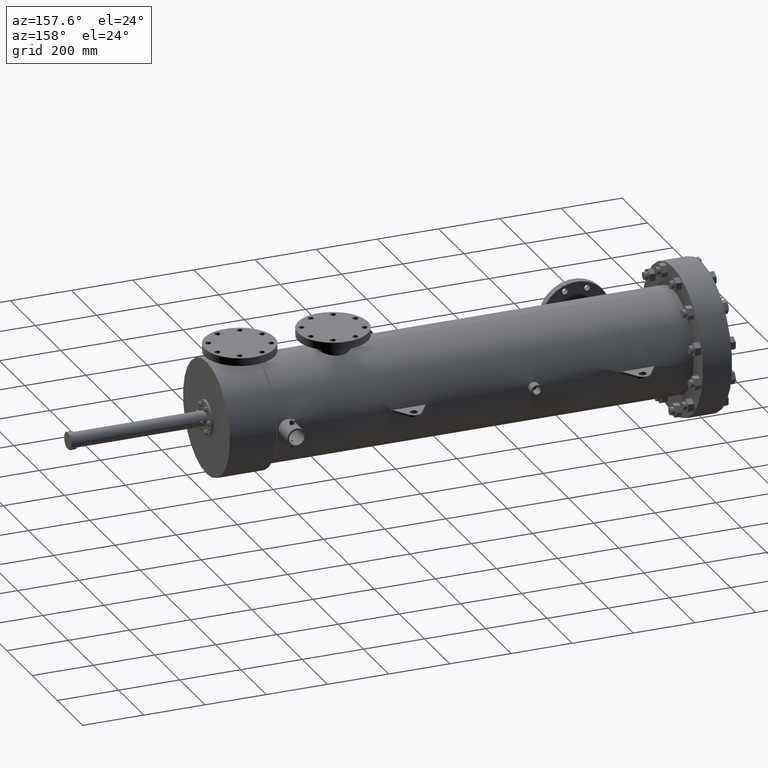
[diagram: clean part render]
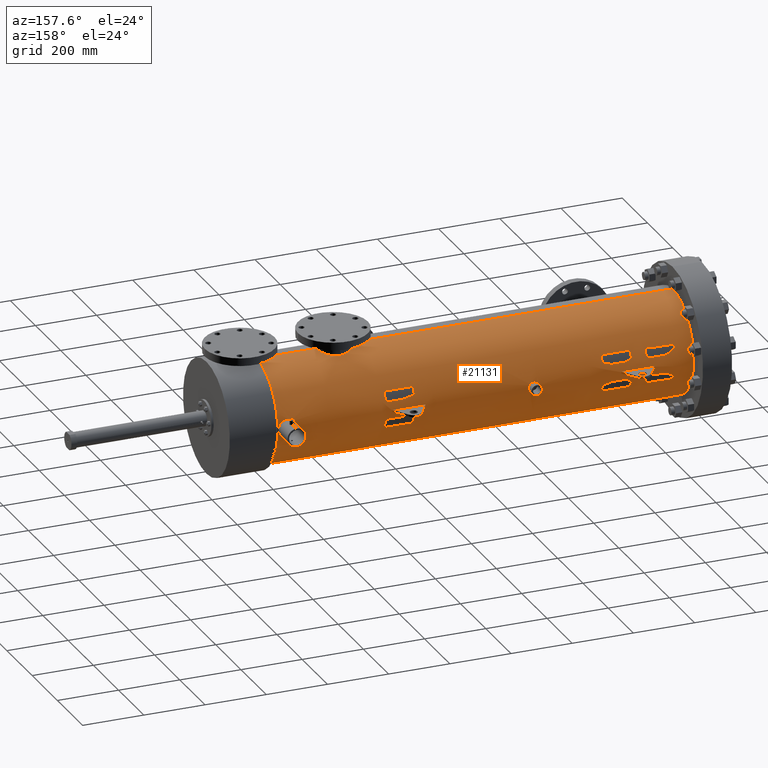
[diagram: same view with one face highlighted and labeled with its STEP entity id]
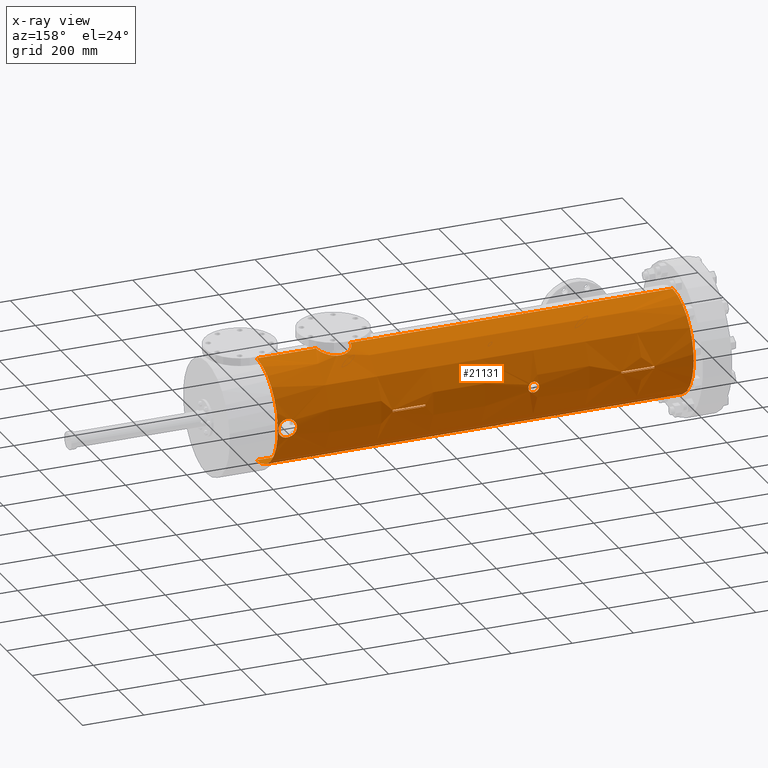
[diagram: x-ray of the same camera — body ghosted, the highlighted face saturated]
A machine part, auxiliary view. The second image highlights one B-rep face of the part: STEP entity #21131.
The next image is the same camera in x-ray: the body ghosted, the highlighted face saturated — about 0% of this face is hidden behind the body in this view.
In plain terms, the highlighted conical surface has half-angle 0.002 deg.
Its self-contained STEP definition (entity closure, byte-faithful):
#32 = CARTESIAN_POINT ( 'NONE',  ( 24.61937592603440095, 6.595216655171038056, 0.6351230890558299258 ) ) ;
#61 = CARTESIAN_POINT ( 'NONE',  ( 55.27200770505329785, 6.558636937178410342, -0.9496377372227016167 ) ) ;
#65 = CARTESIAN_POINT ( 'NONE',  ( 56.60126499763207164, 6.545278759257087131, 1.038696254054454426 ) ) ;
#90 = CARTESIAN_POINT ( 'NONE',  ( 38.73571325463463211, 6.625123272544874986, -0.1250000000000000000 ) ) ;
#99 = CARTESIAN_POINT ( 'NONE',  ( 13.05833878243975299, 6.624066785163618576, 0.1250000000000000000 ) ) ;
#134 = CARTESIAN_POINT ( 'NONE',  ( 54.82050265584400250, 6.624120654174062928, -0.1950900208604222918 ) ) ;
#141 = CARTESIAN_POINT ( 'NONE',  ( 57.01811314554152688, 6.596849437547260386, -0.6328406133667042743 ) ) ;
#177 = CARTESIAN_POINT ( 'NONE',  ( 24.95783008198224806, 6.618644529516417130, 0.3093840079118945763 ) ) ;
#207 = CARTESIAN_POINT ( 'NONE',  ( 54.81232927144455402, 6.625565531657748863, 0.1566859607207307936 ) ) ;
#252 = VERTEX_POINT ( 'NONE', #14868 ) ;
#261 = CARTESIAN_POINT ( 'NONE',  ( 24.99196205247920943, 6.621981699887417250, 0.2241093851198744658 ) ) ;
#496 = CARTESIAN_POINT ( 'NONE',  ( 47.06962784540759515, 2.167228140952087934, 6.262234545450816370 ) ) ;
#570 = CARTESIAN_POINT ( 'NONE',  ( 46.42282088529157846, 1.952181299470898468, 6.332564822849808372 ) ) ;
#642 = CARTESIAN_POINT ( 'NONE',  ( 45.43084339920436321, 0.9092969580647992656, 6.563976836401258730 ) ) ;
#1062 = CARTESIAN_POINT ( 'NONE',  ( 13.05730184998885512, 6.625639197745133657, -0.04167161148260743742 ) ) ;
#1073 = CARTESIAN_POINT ( 'NONE',  ( 23.63488859746746229, 6.625681182923099044, -8.948446784126143041E-28 ) ) ;
#1217 = CARTESIAN_POINT ( 'NONE',  ( 38.41548225481930956, 6.625110096742915289, 0.1250000000000000000 ) ) ;
#1222 = VERTEX_POINT ( 'NONE', #17909 ) ;
#1234 = CARTESIAN_POINT ( 'NONE',  ( 48.40484027190433380, 1.970509890089721328, 6.327044617253957171 ) ) ;
#1247 = CARTESIAN_POINT ( 'NONE',  ( 24.04425288201377953, 6.595185581474420466, -0.6352000489090204871 ) ) ;
#1293 = CARTESIAN_POINT ( 'NONE',  ( 41.25026424325641017, 6.625226732939976770, 0.1250000000000000000 ) ) ;
#1329 = DIRECTION ( 'NONE',  ( -1.000000000000000000, -0.0000000000000000000, -0.0000000000000000000 ) ) ;
#1376 = CARTESIAN_POINT ( 'NONE',  ( 47.71866202469607288, 2.182770335857948663, 6.256932001542447885 ) ) ;
#1456 = CARTESIAN_POINT ( 'NONE',  ( 25.02858938482451734, 6.625738516091783659, 9.224139734670480511E-17 ) ) ;
#1487 = EDGE_CURVE ( 'NONE', #20854, #9613, #10393, .T. ) ;
#1494 =( BOUNDED_CURVE ( )  B_SPLINE_CURVE ( 3, ( #5945, #19851, #2477, #16269 ),
 .UNSPECIFIED., .F., .F. ) 
 B_SPLINE_CURVE_WITH_KNOTS ( ( 4, 4 ),
 ( 3.122728272044997588, 3.160457035134589088 ),
 .UNSPECIFIED. ) 
 CURVE ( )  GEOMETRIC_REPRESENTATION_ITEM ( )  RATIONAL_B_SPLINE_CURVE ( ( 1.000000000000000000, 0.9998813818873752979, 0.9998813818873752979, 1.000000000000000000 ) ) 
 REPRESENTATION_ITEM ( '' )  );
#1538 = CARTESIAN_POINT ( 'NONE',  ( 57.26579621931563224, 3.496765431890256920E-14, 0.0000000000000000000 ) ) ;
#1565 = CARTESIAN_POINT ( 'NONE',  ( 56.15797472438789129, 6.519806763371938985, -1.187230913813825062 ) ) ;
#1608 = CARTESIAN_POINT ( 'NONE',  ( 23.82298312454182465, 6.608534208931899911, -0.4767526722465968425 ) ) ;
#1637 = CARTESIAN_POINT ( 'NONE',  ( 56.73191937657709616, 6.558550149069921176, -0.9513361893102689759 ) ) ;
#1682 = CARTESIAN_POINT ( 'NONE',  ( 23.67154622345036330, 6.621924292519905109, -0.2242122927195955850 ) ) ;
#1696 = CARTESIAN_POINT ( 'NONE',  ( 11.80079695645657623, 6.624015044004892161, -0.1250000000000000000 ) ) ;
#1707 = CARTESIAN_POINT ( 'NONE',  ( 54.81228888708609048, 6.625590013865219063, -0.1363452438704339242 ) ) ;
#1713 = CARTESIAN_POINT ( 'NONE',  ( 56.08047215407318475, 6.518043340364821248, 1.196850393700786830 ) ) ;
#1741 = ORIENTED_EDGE ( 'NONE', *, *, #8170, .F. ) ;
#1756 = CARTESIAN_POINT ( 'NONE',  ( 24.02352328763122813, 6.596123767986869169, 0.6254061756079920542 ) ) ;
#1757 = EDGE_CURVE ( 'NONE', #5052, #12317, #15907, .T. ) ;
#1760 = CARTESIAN_POINT ( 'NONE',  ( 23.63488859746747650, 6.625681182923103485, -0.04562328807414386955 ) ) ;
#1794 = CARTESIAN_POINT ( 'NONE',  ( 56.95104840903515964, 6.586834115037909498, 0.7296245011184009366 ) ) ;
#1842 = CARTESIAN_POINT ( 'NONE',  ( 24.44529064131588569, 6.589907312063103539, 0.6879207084075606993 ) ) ;
#1871 = CARTESIAN_POINT ( 'NONE',  ( 55.50730347532889652, 6.536629491605053133, -1.090748190403775020 ) ) ;
#1878 = CARTESIAN_POINT ( 'NONE',  ( 56.82032511695359744, 6.569246863854623086, 0.8737899169955739564 ) ) ;
#1906 = CARTESIAN_POINT ( 'NONE',  ( 8.804567666652552305, 6.623891765102280615, 0.1250000000000000000 ) ) ;
#1911 = LINE ( 'NONE', #2619, #13823 ) ;
#1922 = CARTESIAN_POINT ( 'NONE',  ( 24.10725494163689575, 6.592642637356330049, 0.6612695170001846590 ) ) ;
#1951 = CARTESIAN_POINT ( 'NONE',  ( 54.92775216551337536, 6.605822004679044568, 0.5301250749407172558 ) ) ;
#2071 = ORIENTED_EDGE ( 'NONE', *, *, #1487, .F. ) ;
#2100 = CARTESIAN_POINT ( 'NONE',  ( 55.96193490122126946, 6.518128765981451522, 1.196358473467759032 ) ) ;
#2245 = CARTESIAN_POINT ( 'NONE',  ( 45.56626224319098384, 1.163611780546666141, 6.523898366256731585 ) ) ;
#2303 = B_SPLINE_CURVE_WITH_KNOTS ( 'NONE', 3,
 ( #13797, #20729, #13558, #10388, #18688, #11838, #12425, #7277, #19157, #13950, #19381, #5243, #5394, #19311, #8868, #17620, #10548, #3730, #7126, #1756, #5463, #1922, #17538, #3577, #8941, #5317, #12206, #7198, #5535, #9016, #1842, #15666, #13881, #32, #14023, #17388, #7053, #20957, #8789, #20890, #3652, #10624, #21036, #3506, #177, #12278, #261, #15740, #10697, #6978, #12345, #17458, #19236, #21116 ),
 .UNSPECIFIED., .F., .F.,
 ( 4, 2, 2, 2, 2, 2, 2, 2, 2, 2, 2, 2, 2, 2, 2, 2, 2, 2, 2, 2, 2, 2, 2, 2, 2, 2, 4 ),
 ( 0.01059061988978174731, 0.01232102977938333808, 0.01405143966898492885, 0.01751225944818817631, 0.01924266933778986249, 0.02097307922739155214, 0.02270348911699324179, 0.02443389900659492797, 0.02789471878579830380, 0.02962512867540012876, 0.03135553856500195025, 0.03481635834420591935, 0.03654676823380789696, 0.03827717812340988152, 0.04000758801301185913, 0.04173799790261383674, 0.04519881768181811810, 0.04692922757142041490, 0.04865963746102271170, 0.05212045724022758286, 0.05385086712983000456, 0.05558127701943244015, 0.05904209679863713089, 0.06077250668823939994, 0.06250291657784168287, 0.06423332646744396579, 0.06596373635704623484 ),
 .UNSPECIFIED. ) ;
#2322 = CARTESIAN_POINT ( 'NONE',  ( 46.32807682323560527, 1.901276761178815722, 6.348104310223348534 ) ) ;
#2380 = CARTESIAN_POINT ( 'NONE',  ( 42.50753973756729920, 6.625278463137210139, -0.1250000000000000000 ) ) ;
#2394 = CARTESIAN_POINT ( 'NONE',  ( 45.98140626536168440, 1.651097372132948271, 6.417657855179334625 ) ) ;
#2469 = CARTESIAN_POINT ( 'NONE',  ( 45.68537481896176189, 1.341377978199852272, 6.490525186168809135 ) ) ;
#2477 = CARTESIAN_POINT ( 'NONE',  ( 42.50650299473547022, 6.626850588178862189, 0.04167160967435654118 ) ) ;
#2545 = VECTOR ( 'NONE', #6820, 39.37007874015748854 ) ;
#2599 = B_SPLINE_CURVE_WITH_KNOTS ( 'NONE', 3,
 ( #21210, #12889, #19554, #10878, #21287, #496, #19624, #5856, #10948, #14560, #4042, #12668, #570, #2322, #14635, #12586, #9271, #5642, #2394, #17938, #14337, #21360, #2469, #2245, #3964, #11027, #16040, #642, #14477, #9344, #4192, #16262, #5934, #18009, #7650, #21507, #11250, #21579 ),
 .UNSPECIFIED., .F., .F.,
 ( 4, 2, 2, 2, 2, 2, 2, 2, 2, 2, 2, 2, 2, 2, 2, 2, 2, 2, 4 ),
 ( 0.2164817129622222669, 0.2219716033028540925, 0.2247165484731700191, 0.2274614936434859458, 0.2384412743247515676, 0.2411862194950678273, 0.2439311646653840870, 0.2494210550060160236, 0.2549109453466479325, 0.2576558905169641922, 0.2604008356872803964, 0.2713806163685458239, 0.2768705067091787320, 0.2796154518794953248, 0.2823603970498119731, 0.2933401777310783998, 0.2960851229013949371, 0.2988300680717114743, 0.3043199584123445489 ),
 .UNSPECIFIED. ) ;
#2619 = CARTESIAN_POINT ( 'NONE',  ( 3.750000000603466610, 3.577896606663461051E-14, 6.624863171135633166 ) ) ;
#2680 = CARTESIAN_POINT ( 'NONE',  ( 49.55326896037257001, 0.5721443596339923499, 6.602367384576369069 ) ) ;
#2757 = CARTESIAN_POINT ( 'NONE',  ( 49.62331052514779373, 0.1457795337870360641, 6.625246418453715869 ) ) ;
#2820 = ORIENTED_EDGE ( 'NONE', *, *, #1757, .T. ) ;
#2890 = AXIS2_PLACEMENT_3D ( 'NONE', #9726, #11107, #4647 ) ;
#2901 = CARTESIAN_POINT ( 'NONE',  ( 49.62060093415822593, 0.1819556995356231277, 6.624349544821767743 ) ) ;
#3037 = CARTESIAN_POINT ( 'NONE',  ( 55.92344924069163881, 6.518387742782161709, -1.194943773116535102 ) ) ;
#3048 = CARTESIAN_POINT ( 'NONE',  ( 49.23575818607319121, 1.253107856756583205, 6.507245399283522858 ) ) ;
#3150 = ORIENTED_EDGE ( 'NONE', *, *, #7154, .F. ) ;
#3194 = CARTESIAN_POINT ( 'NONE',  ( 48.59232739049662086, 1.865144206317850273, 6.358841610129657873 ) ) ;
#3204 = CARTESIAN_POINT ( 'NONE',  ( 24.51269945545988449, 6.591418354534501312, -0.6733340025067852119 ) ) ;
#3280 = CARTESIAN_POINT ( 'NONE',  ( 24.24084785732150849, 6.589546321928668071, -0.6912783887236043645 ) ) ;
#3308 = CARTESIAN_POINT ( 'NONE',  ( 56.04057664901846891, 6.518041671730610886, -1.196850393700786830 ) ) ;
#3360 = VERTEX_POINT ( 'NONE', #8132 ) ;
#3372 = CARTESIAN_POINT ( 'NONE',  ( 55.84441731007866849, 6.519809599965372904, 1.187143371141885950 ) ) ;
#3382 = CARTESIAN_POINT ( 'NONE',  ( 56.53146307844686191, 6.539478711684291845, -1.073852852331953711 ) ) ;
#3411 = CARTESIAN_POINT ( 'NONE',  ( 3.750000000603466610, 3.496765431890256920E-14, -6.624863171135633166 ) ) ;
#3432 = CARTESIAN_POINT ( 'NONE',  ( 24.02346076836300526, 6.596127308524198263, -0.6253668087883182958 ) ) ;
#3459 = CARTESIAN_POINT ( 'NONE',  ( 55.16895718709756125, 6.570947460457707834, 0.8600499393138349991 ) ) ;
#3465 = CARTESIAN_POINT ( 'NONE',  ( 57.18869653688910404, 6.625321751992521158, -0.1568534599495512993 ) ) ;
#3504 = DIRECTION ( 'NONE',  ( 0.0000000000000000000, 0.0000000000000000000, -1.000000000000000000 ) ) ;
#3506 = CARTESIAN_POINT ( 'NONE',  ( 24.93635912126556065, 6.616622564362423908, 0.3494229907869685903 ) ) ;
#3536 = CARTESIAN_POINT ( 'NONE',  ( 56.86148112990209569, 6.574547457708962206, -0.8326385156845793611 ) ) ;
#3563 = CARTESIAN_POINT ( 'NONE',  ( 8.804567666652552305, 6.623891765102280615, -0.1250000000000000000 ) ) ;
#3577 = CARTESIAN_POINT ( 'NONE',  ( 24.21800542683008217, 6.589901417761278246, 0.6878869913921086265 ) ) ;
#3606 = CARTESIAN_POINT ( 'NONE',  ( 55.30420587333680515, 6.555124791273326146, 0.9735168409037276982 ) ) ;
#3608 = ORIENTED_EDGE ( 'NONE', *, *, #15126, .F. ) ;
#3611 = CARTESIAN_POINT ( 'NONE',  ( 57.19789781860717426, 6.626978114822371424, -0.03870098603353362005 ) ) ;
#3631 = CARTESIAN_POINT ( 'NONE',  ( 38.41548225481930956, 6.625110096742915289, -0.1250000000000000000 ) ) ;
#3652 = CARTESIAN_POINT ( 'NONE',  ( 24.85589912248967792, 6.609784442356694711, 0.4597622495242772445 ) ) ;
#3673 = CARTESIAN_POINT ( 'NONE',  ( 54.88114633577802692, 6.613564451167517788, 0.4227933831450450541 ) ) ;
#3692 = ORIENTED_EDGE ( 'NONE', *, *, #20898, .F. ) ;
#3730 = CARTESIAN_POINT ( 'NONE',  ( 23.96335986567279619, 6.599210324008490502, 0.5919579126977894123 ) ) ;
#3949 = CARTESIAN_POINT ( 'NONE',  ( 38.25536675491165539, 6.625103508841950095, 0.1250000000000000000 ) ) ;
#3964 = CARTESIAN_POINT ( 'NONE',  ( 45.52927309852552185, 1.102185498450706902, 6.534595241988764514 ) ) ;
#3995 = FACE_BOUND ( 'NONE', #8965, .T. ) ;
#4031 = B_SPLINE_CURVE_WITH_KNOTS ( 'NONE', 3,
 ( #20644, #10455, #15573, #10304, #12270, #17311, #99 ),
 .UNSPECIFIED., .F., .F.,
 ( 4, 3, 4 ),
 ( 0.1885951599580259208, 0.2008162591694472587, 0.2966409463904753352 ),
 .UNSPECIFIED. ) ;
#4042 = CARTESIAN_POINT ( 'NONE',  ( 46.52012989077491056, 1.999442725861818815, 6.317801857963616818 ) ) ;
#4164 = ORIENTED_EDGE ( 'NONE', *, *, #13986, .F. ) ;
#4192 = CARTESIAN_POINT ( 'NONE',  ( 45.30551253636033238, 0.5739196774382412380, 6.603202763877969339 ) ) ;
#4197 = EDGE_LOOP ( 'NONE', ( #21092, #19231 ) ) ;
#4266 = CARTESIAN_POINT ( 'NONE',  ( 56.00151093333343510, 6.518040037802436792, 1.196850393700786830 ) ) ;
#4536 = CONICAL_SURFACE ( 'NONE', #9287, 6.624863171135633166, 4.113735830023026774E-05 ) ;
#4637 = CARTESIAN_POINT ( 'NONE',  ( 49.59914722851742397, 0.3612017787890298703, 6.617275728583726924 ) ) ;
#4647 = DIRECTION ( 'NONE',  ( 0.0000000000000000000, 0.0000000000000000000, 1.000000000000000000 ) ) ;
#4725 = CARTESIAN_POINT ( 'NONE',  ( 25.02858938482451734, 6.625738516091782770, -0.04580066019597584664 ) ) ;
#4728 = CIRCLE ( 'NONE', #8205, 6.627064669620645887 ) ;
#4729 = CARTESIAN_POINT ( 'NONE',  ( 38.25640358139656172, 6.626675760702358531, 0.04167161047184272243 ) ) ;
#4772 = CARTESIAN_POINT ( 'NONE',  ( 55.96246017081339374, 6.518038404499684191, -1.196850393700787052 ) ) ;
#4785 = CARTESIAN_POINT ( 'NONE',  ( 49.03338738523458318, 1.504516082027179014, 6.453882776598839577 ) ) ;
#4833 =( BOUNDED_CURVE ( )  B_SPLINE_CURVE ( 3, ( #18348, #1062, #20114, #20255 ),
 .UNSPECIFIED., .F., .T. ) 
 B_SPLINE_CURVE_WITH_KNOTS ( ( 4, 4 ),
 ( 3.122724822180704241, 3.160460484998882436 ),
 .UNSPECIFIED. ) 
 CURVE ( )  GEOMETRIC_REPRESENTATION_ITEM ( )  RATIONAL_B_SPLINE_CURVE ( ( 1.000000000000000000, 0.9998813384996110276, 0.9998813384996110276, 1.000000000000000000 ) ) 
 REPRESENTATION_ITEM ( '' )  );
#4945 = CARTESIAN_POINT ( 'NONE',  ( 24.42316272370678121, 6.589448843797510946, -0.6923331540858830291 ) ) ;
#4955 = EDGE_CURVE ( 'NONE', #16462, #14658, #10701, .T. ) ;
#5021 = CARTESIAN_POINT ( 'NONE',  ( 25.02411743669181021, 6.625263635886830649, -0.09101396663154291689 ) ) ;
#5052 = VERTEX_POINT ( 'NONE', #3949 ) ;
#5065 = CARTESIAN_POINT ( 'NONE',  ( 3.750000000603466610, 3.577896606663461051E-14, 6.624863171135633166 ) ) ;
#5123 = CARTESIAN_POINT ( 'NONE',  ( 55.22712905745348877, 6.563829871673042327, 0.9127819825249572361 ) ) ;
#5176 = VERTEX_POINT ( 'NONE', #2380 ) ;
#5199 = CARTESIAN_POINT ( 'NONE',  ( 54.90306078364599784, 6.609900556514650916, -0.4756479162580777298 ) ) ;
#5203 = CARTESIAN_POINT ( 'NONE',  ( 57.15996716586990090, 6.620216910994888515, -0.3107172356465632279 ) ) ;
#5243 = CARTESIAN_POINT ( 'NONE',  ( 23.76505170313451032, 6.613251721420152052, 0.4061780936425055666 ) ) ;
#5269 = CARTESIAN_POINT ( 'NONE',  ( 54.86566038060438188, 6.616155448750128620, -0.3852522469277823713 ) ) ;
#5278 = CARTESIAN_POINT ( 'NONE',  ( 57.13508081559521656, 6.615913959978882097, 0.3860272525338355187 ) ) ;
#5297 = CARTESIAN_POINT ( 'NONE',  ( 39.99298874894551403, 6.625175002742533792, -0.1250000000000000000 ) ) ;
#5317 = CARTESIAN_POINT ( 'NONE',  ( 24.28637791460862516, 6.589077782960540475, 0.6957480133399969180 ) ) ;
#5345 = CARTESIAN_POINT ( 'NONE',  ( 55.72927201830508892, 6.523599452607842686, 1.166129746964515546 ) ) ;
#5351 = CARTESIAN_POINT ( 'NONE',  ( 57.09155885667249208, 6.608598616183313901, -0.4946045387234457302 ) ) ;
#5394 = CARTESIAN_POINT ( 'NONE',  ( 23.77858653881777684, 6.612102420922097323, 0.4244333262365970194 ) ) ;
#5422 = CARTESIAN_POINT ( 'NONE',  ( 54.84301726680261169, 6.620127989252421408, -0.3106396370068192914 ) ) ;
#5463 = CARTESIAN_POINT ( 'NONE',  ( 24.04419797502965395, 6.595188590959319974, 0.6351677991504603993 ) ) ;
#5516 = CARTESIAN_POINT ( 'NONE',  ( 8.805604682787139481, 6.625464304548957628, 0.04167161228053356536 ) ) ;
#5535 = CARTESIAN_POINT ( 'NONE',  ( 24.37721817419750892, 6.589082614451402975, 0.6957378251831658478 ) ) ;
#5642 = CARTESIAN_POINT ( 'NONE',  ( 46.00853335823519075, 1.674520346951036798, 6.411581821238608647 ) ) ;
#5856 = CARTESIAN_POINT ( 'NONE',  ( 46.85723966555224251, 2.125501400109453876, 6.276579946493526130 ) ) ;
#5868 = CARTESIAN_POINT ( 'NONE',  ( 3.750000000603466610, 3.577910086953825701E-14, 6.624863171135633166 ) ) ;
#5878 = VERTEX_POINT ( 'NONE', #7052 ) ;
#5934 = CARTESIAN_POINT ( 'NONE',  ( 45.26368182760767667, 0.3608518935459912869, 6.616837069898662271 ) ) ;
#5945 = CARTESIAN_POINT ( 'NONE',  ( 42.50753973756729920, 6.625278463137210139, -0.1250000000000000000 ) ) ;
#6232 = CARTESIAN_POINT ( 'NONE',  ( 49.57086431601327092, 0.5023045277330654423, 6.608061707814654184 ) ) ;
#6284 = CARTESIAN_POINT ( 'NONE',  ( 38.25536675491165539, 6.625103508841950095, 0.1250000000000000000 ) ) ;
#6371 = ORIENTED_EDGE ( 'NONE', *, *, #14709, .F. ) ;
#6431 = CARTESIAN_POINT ( 'NONE',  ( 39.99298874894551403, 6.625175002742533792, 0.1250000000000000000 ) ) ;
#6452 = ORIENTED_EDGE ( 'NONE', *, *, #7573, .T. ) ;
#6457 = CARTESIAN_POINT ( 'NONE',  ( 24.98422058026160286, 6.621211618792542275, -0.2457355826890889883 ) ) ;
#6524 = CARTESIAN_POINT ( 'NONE',  ( 48.03756353186876282, 2.111759966035571257, 6.281205886330067933 ) ) ;
#6604 = ORIENTED_EDGE ( 'NONE', *, *, #8320, .F. ) ;
#6668 = CARTESIAN_POINT ( 'NONE',  ( 48.00273157283473324, 2.121460245069415329, 6.277931972968430863 ) ) ;
#6679 = CARTESIAN_POINT ( 'NONE',  ( 24.95809008956577557, 6.618669585633520036, -0.3087971679534053937 ) ) ;
#6718 = DIRECTION ( 'NONE',  ( 0.9999999991538588429, 5.037873415354562398E-21, 4.113735828862759687E-05 ) ) ;
#6758 = CARTESIAN_POINT ( 'NONE',  ( 24.68097200690056425, 6.598115832664579905, -0.6047690943809646003 ) ) ;
#6791 = CARTESIAN_POINT ( 'NONE',  ( 56.73085133356329379, 6.558679416164492793, 0.9497631836603287470 ) ) ;
#6813 = CARTESIAN_POINT ( 'NONE',  ( 38.25536675491165539, 6.625103508841950095, -0.1250000000000000000 ) ) ;
#6820 = DIRECTION ( 'NONE',  ( 0.9999999991538588429, 0.0000000000000000000, -4.113735828862759687E-05 ) ) ;
#6857 = CARTESIAN_POINT ( 'NONE',  ( 55.40271460402703951, 6.545440690237485093, -1.036475581212692454 ) ) ;
#6865 = CARTESIAN_POINT ( 'NONE',  ( 56.97482561112986588, 6.590315645230131913, -0.6975857207389197789 ) ) ;
#6933 = CARTESIAN_POINT ( 'NONE',  ( 55.21218452966483170, 6.565610687532476675, 0.8998885865526127237 ) ) ;
#6978 = CARTESIAN_POINT ( 'NONE',  ( 25.01958517962198769, 6.624795725296525717, 0.1139450529487276570 ) ) ;
#6981 = CARTESIAN_POINT ( 'NONE',  ( 23.77861178165564127, 6.612100244980370078, -0.4244685776954065792 ) ) ;
#7002 = CARTESIAN_POINT ( 'NONE',  ( 54.98518490710591777, 6.596722388746485422, 0.6332982693191637757 ) ) ;
#7009 = CARTESIAN_POINT ( 'NONE',  ( 56.60107268484301102, 6.545490416470158834, -1.036597767071960829 ) ) ;
#7052 = CARTESIAN_POINT ( 'NONE',  ( 57.26579621931563224, 3.496765431890256920E-14, -6.627064669620645887 ) ) ;
#7053 = CARTESIAN_POINT ( 'NONE',  ( 24.70015829242523253, 6.599242862243239749, 0.5919352068047648574 ) ) ;
#7057 = CARTESIAN_POINT ( 'NONE',  ( 23.65824170378487068, 6.623263409286160197, -0.1803525620594776668 ) ) ;
#7080 = CARTESIAN_POINT ( 'NONE',  ( 55.35234780940024990, 6.550239825919715209, -1.005695142057648539 ) ) ;
#7084 = CARTESIAN_POINT ( 'NONE',  ( 56.91436024096783086, 6.581678087288247880, -0.7742997128557558284 ) ) ;
#7126 = CARTESIAN_POINT ( 'NONE',  ( 23.98294259521781413, 6.598142818011582200, 0.6037142358510607654 ) ) ;
#7152 = CARTESIAN_POINT ( 'NONE',  ( 54.91099983422270725, 6.608585101639276260, -0.4935822678550075837 ) ) ;
#7154 = EDGE_CURVE ( 'NONE', #19584, #1222, #2599, .T. ) ;
#7198 = CARTESIAN_POINT ( 'NONE',  ( 24.35452680567824046, 6.588963992799613756, 0.6968478555200401381 ) ) ;
#7277 = CARTESIAN_POINT ( 'NONE',  ( 23.69680732721284144, 6.619452095090784027, 0.2880790213116908860 ) ) ;
#7515 = CARTESIAN_POINT ( 'NONE',  ( 55.92253742246306558, 6.518485382519216387, 1.194404891122209822 ) ) ;
#7540 = ORIENTED_EDGE ( 'NONE', *, *, #8383, .F. ) ;
#7573 = EDGE_CURVE ( 'NONE', #252, #13745, #4833, .T. ) ;
#7650 = CARTESIAN_POINT ( 'NONE',  ( 45.24840748013117775, 0.2525039441211047175, 6.621856317676017234 ) ) ;
#7954 = CARTESIAN_POINT ( 'NONE',  ( 38.25536675491165539, 6.625103508841950095, -0.1250000000000000000 ) ) ;
#8093 = CARTESIAN_POINT ( 'NONE',  ( 49.51107686339983616, 0.7103907029026167441, 6.588924517301689932 ) ) ;
#8132 = CARTESIAN_POINT ( 'NONE',  ( 57.26579621931563224, 0.3715430532434029764, 6.616641285041890974 ) ) ;
#8170 = EDGE_CURVE ( 'NONE', #9861, #19584, #21421, .T. ) ;
#8205 = AXIS2_PLACEMENT_3D ( 'NONE', #1538, #1329, #20297 ) ;
#8224 = CARTESIAN_POINT ( 'NONE',  ( 38.73571325463463211, 6.625123272544874986, 0.1250000000000000000 ) ) ;
#8241 = CARTESIAN_POINT ( 'NONE',  ( 48.34030826362923250, 2.001103521451369716, 6.317399354080527552 ) ) ;
#8310 = CARTESIAN_POINT ( 'NONE',  ( 48.14093611005113615, 2.080224423496231712, 6.291754034668517903 ) ) ;
#8320 = EDGE_CURVE ( 'NONE', #9648, #5878, #19031, .T. ) ;
#8369 = CARTESIAN_POINT ( 'NONE',  ( 42.50753973756729920, 6.625278463137210139, 0.1250000000000000000 ) ) ;
#8383 = EDGE_CURVE ( 'NONE', #22174, #13745, #4031, .T. ) ;
#8514 = CARTESIAN_POINT ( 'NONE',  ( 56.44219162643338450, 6.532913651235028318, 1.112939416306374607 ) ) ;
#8589 = CARTESIAN_POINT ( 'NONE',  ( 54.84517325123110965, 6.619758779699728812, 0.3112306407253642160 ) ) ;
#8594 = CARTESIAN_POINT ( 'NONE',  ( 57.19066091683519915, 6.625658013673549895, 0.1566637639785531388 ) ) ;
#8668 = CARTESIAN_POINT ( 'NONE',  ( 54.86796619652706397, 6.615816318802990814, 0.3860798834887013697 ) ) ;
#8670 = CARTESIAN_POINT ( 'NONE',  ( 56.15828116663449521, 6.519481128394287950, 1.189112398585951746 ) ) ;
#8698 = CARTESIAN_POINT ( 'NONE',  ( 8.805604682787139481, 6.625464304548957628, -0.04167161228053193472 ) ) ;
#8743 = CARTESIAN_POINT ( 'NONE',  ( 54.82387009511533194, 6.623520784655300808, -0.2144703405446217181 ) ) ;
#8753 = CARTESIAN_POINT ( 'NONE',  ( 56.31297725919120722, 6.525035643974702815, -1.158283727208965885 ) ) ;
#8789 = CARTESIAN_POINT ( 'NONE',  ( 24.79206443642555513, 6.604963868372681901, 0.5251452308516283418 ) ) ;
#8815 = CARTESIAN_POINT ( 'NONE',  ( 54.92781136330066971, 6.605832462392297266, -0.5291570142557160406 ) ) ;
#8824 = CARTESIAN_POINT ( 'NONE',  ( 57.06587676549688126, 6.604408968429789084, -0.5476850020479695491 ) ) ;
#8868 = CARTESIAN_POINT ( 'NONE',  ( 23.82305126225285363, 6.608529062863005343, 0.4768226266897895860 ) ) ;
#8871 = CARTESIAN_POINT ( 'NONE',  ( 23.63932625547785804, 6.625210222891612766, -0.09081556685202170354 ) ) ;
#8895 = CARTESIAN_POINT ( 'NONE',  ( 54.93670747091734086, 6.604391565477759407, -0.5468378120134164133 ) ) ;
#8941 = CARTESIAN_POINT ( 'NONE',  ( 24.24088227590169708, 6.589546156177243041, 0.6912799596590354367 ) ) ;
#8965 = EDGE_LOOP ( 'NONE', ( #7540, #17811, #21399, #6452 ) ) ;
#8973 = CARTESIAN_POINT ( 'NONE',  ( 56.00151093333343510, 6.518040037802436792, -1.196850393700786830 ) ) ;
#9016 = CARTESIAN_POINT ( 'NONE',  ( 24.42256316912916958, 6.589553482151583097, 0.6912817415318548431 ) ) ;
#9155 = CARTESIAN_POINT ( 'NONE',  ( 49.62785039370078977, 3.577935135807983371E-14, 6.626750464706363530 ) ) ;
#9271 = CARTESIAN_POINT ( 'NONE',  ( 46.09139221681938636, 1.742617280839048322, 6.393542385459312527 ) ) ;
#9287 = AXIS2_PLACEMENT_3D ( 'NONE', #10386, #10085, #3504 ) ;
#9344 = CARTESIAN_POINT ( 'NONE',  ( 45.34743164485293221, 0.7109576548040390520, 6.589677609538870939 ) ) ;
#9613 = VERTEX_POINT ( 'NONE', #18822 ) ;
#9648 = VERTEX_POINT ( 'NONE', #3411 ) ;
#9687 = EDGE_CURVE ( 'NONE', #22174, #11299, #16465, .T. ) ;
#9726 = CARTESIAN_POINT ( 'NONE',  ( 3.750000000603466610, 3.496765431890256920E-14, 0.0000000000000000000 ) ) ;
#9796 = CARTESIAN_POINT ( 'NONE',  ( 49.62693713538740781, 0.07305620145837420087, 6.626447505746360989 ) ) ;
#9861 = VERTEX_POINT ( 'NONE', #9155 ) ;
#9865 = CARTESIAN_POINT ( 'NONE',  ( 49.17218731163591627, 1.340040857960248522, 6.489894361472131834 ) ) ;
#10079 = CARTESIAN_POINT ( 'NONE',  ( 47.89665490738689613, 2.147238905544275323, 6.269154601061226018 ) ) ;
#10085 = DIRECTION ( 'NONE',  ( 1.000000000000000000, 0.0000000000000000000, 0.0000000000000000000 ) ) ;
#10090 = CARTESIAN_POINT ( 'NONE',  ( 24.57797369018552303, 6.593539053408409067, -0.6522917447651926937 ) ) ;
#10100 = CARTESIAN_POINT ( 'NONE',  ( 10.54325513047339946, 6.623963302845949030, -0.1250000000000000000 ) ) ;
#10158 = CARTESIAN_POINT ( 'NONE',  ( 24.89864873664950906, 6.613317355261682629, -0.4058771975777647478 ) ) ;
#10240 = CARTESIAN_POINT ( 'NONE',  ( 24.15140982884304321, 6.591271794317260735, -0.6746466372424023694 ) ) ;
#10271 = CARTESIAN_POINT ( 'NONE',  ( 56.27331940614827488, 6.523603716247667883, 1.166233082797943243 ) ) ;
#10296 = CARTESIAN_POINT ( 'NONE',  ( 38.57559775472697083, 6.625116684643896470, -0.1250000000000000000 ) ) ;
#10304 = CARTESIAN_POINT ( 'NONE',  ( 9.285713304490224473, 6.623911561686790073, 0.1250000000000000000 ) ) ;
#10319 = CARTESIAN_POINT ( 'NONE',  ( 23.72667136708873770, 6.616612606525798412, -0.3487155941745780918 ) ) ;
#10340 = CARTESIAN_POINT ( 'NONE',  ( 54.83554204691766643, 6.621452685191282050, 0.2730028999875179774 ) ) ;
#10346 = CARTESIAN_POINT ( 'NONE',  ( 57.19597475253064545, 6.626631129157485312, -0.07807387657718319052 ) ) ;
#10386 = CARTESIAN_POINT ( 'NONE',  ( 3.750000000603466610, 3.496765431890256920E-14, 0.0000000000000000000 ) ) ;
#10388 = CARTESIAN_POINT ( 'NONE',  ( 23.64054301310790862, 6.625088721847982143, 0.09151412531527976235 ) ) ;
#10392 = CARTESIAN_POINT ( 'NONE',  ( 23.92607437777511947, 6.601395181851704486, -0.5670549258633262868 ) ) ;
#10393 = B_SPLINE_CURVE_WITH_KNOTS ( 'NONE', 3,
 ( #20853, #1713, #8670, #10271, #15394, #11941, #17113, #22427, #8514, #12090, #65, #12239, #6791, #19193, #1878, #10504, #10581, #1794, #15618, #20690, #15698, #13834, #5278, #18877, #17195, #8594, #13754, #19028, #3611, #10346, #20609, #3465, #20772, #5203, #15540, #10425, #5351, #22353, #8824, #17420, #141, #6865, #12018, #7084, #12164, #13914, #3536, #17350, #1637, #18956, #7009, #3382, #19113, #20923, #8753, #15470, #1565, #13670, #3308, #8973 ),
 .UNSPECIFIED., .F., .F.,
 ( 4, 2, 2, 2, 2, 2, 2, 2, 2, 2, 2, 2, 2, 2, 2, 2, 2, 2, 2, 2, 2, 2, 2, 2, 2, 2, 2, 2, 2, 4 ),
 ( 0.07201808838745576979, 0.07797129348137053773, 0.08094789602832792863, 0.08243619730180662408, 0.08392449857528531953, 0.08987770366920005971, 0.09285430621615715918, 0.09583090876311425865, 0.09880751131007135812, 0.1017841138570284576, 0.1077373189509426565, 0.1107139214978998809, 0.1136905240448571053, 0.1196437291387715818, 0.1211320304122501940, 0.1226203316857288061, 0.1255969342326860305, 0.1315501393266004793, 0.1330384406000792996, 0.1345267418735580922, 0.1375033444205157052, 0.1404799469674732904, 0.1419682482409522772, 0.1434565495144313196, 0.1494097546083478223, 0.1523863571553060736, 0.1553629597022643249, 0.1613161647961814382, 0.1642927673431403279, 0.1672693698900992176 ),
 .UNSPECIFIED. ) ;
#10419 = CARTESIAN_POINT ( 'NONE',  ( 55.57935865869377068, 6.531652558495130378, 1.120101331417647339 ) ) ;
#10425 = CARTESIAN_POINT ( 'NONE',  ( 57.09959397394865732, 6.609930081000413793, -0.4765005516301240585 ) ) ;
#10455 = CARTESIAN_POINT ( 'NONE',  ( 8.964949545931775177, 6.623898363963783176, 0.1250000000000000000 ) ) ;
#10499 = CARTESIAN_POINT ( 'NONE',  ( 55.63513526273616350, 6.528286657443845620, 1.139562963706527210 ) ) ;
#10504 = CARTESIAN_POINT ( 'NONE',  ( 56.87536163213857066, 6.576335814326461637, 0.8187493160537209214 ) ) ;
#10545 = VERTEX_POINT ( 'NONE', #17598 ) ;
#10548 = CARTESIAN_POINT ( 'NONE',  ( 23.90665805993826609, 6.602535012785812896, 0.5540525158985583065 ) ) ;
#10574 = CARTESIAN_POINT ( 'NONE',  ( 54.98464972361615111, 6.596805338212776704, -0.6324251935855879081 ) ) ;
#10581 = CARTESIAN_POINT ( 'NONE',  ( 56.90150935026853318, 6.579873280021273807, 0.7899216289662056578 ) ) ;
#10612 = ORIENTED_EDGE ( 'NONE', *, *, #15363, .T. ) ;
#10624 = CARTESIAN_POINT ( 'NONE',  ( 24.88496084752295801, 6.612153718413404491, 0.4243474366656012631 ) ) ;
#10646 = CARTESIAN_POINT ( 'NONE',  ( 55.09997090107041373, 6.579827767900666480, 0.7910555052986061320 ) ) ;
#10697 = CARTESIAN_POINT ( 'NONE',  ( 25.01071031187379745, 6.623879772407861743, 0.1584733407282817585 ) ) ;
#10701 = B_SPLINE_CURVE_WITH_KNOTS ( 'NONE', 3,
 ( #1456, #4725, #5021, #22026, #15366, #22237, #6457, #6679, #15156, #10158, #16942, #17083, #18691, #11910, #11699, #20429, #13338, #6758, #18534, #10090, #13561, #3204, #15288, #4945, #18760, #16795, #13631, #3280, #20581, #10240, #22318, #1247, #3432, #17325, #20893, #10392, #18926, #17160, #20659, #1608, #14026, #6981, #15670, #10319, #17462, #12055, #1682, #7057, #15442, #8871, #1760, #22401 ),
 .UNSPECIFIED., .F., .F.,
 ( 4, 2, 2, 2, 2, 2, 2, 2, 2, 2, 2, 2, 2, 2, 2, 2, 2, 2, 2, 2, 2, 2, 2, 2, 2, 4 ),
 ( 0.06596373635704623484, 0.06942444253569293733, 0.07115479562501625388, 0.07288514871433957043, 0.07634585489298620353, 0.07807620798230943682, 0.07980656107163265622, 0.08153691416095587563, 0.08326726725027909504, 0.08672797342892582528, 0.08845832651824919735, 0.09018867960757255553, 0.09364938578621960497, 0.09537973887554296315, 0.09711009196486632133, 0.1005707981435127185, 0.1023011512328358963, 0.1040315043221591018, 0.1057618574114822796, 0.1074922105008054851, 0.1092225635901286629, 0.1109529166794518684, 0.1144136228580984321, 0.1161439759474217209, 0.1178743290367449958, 0.1213350352153916289 ),
 .UNSPECIFIED. ) ;
#10878 = CARTESIAN_POINT ( 'NONE',  ( 47.17760049380696330, 2.182492008169394371, 6.256934475997170786 ) ) ;
#10948 = CARTESIAN_POINT ( 'NONE',  ( 46.71991095265910587, 2.083591283343654510, 6.290809314520898532 ) ) ;
#11027 = CARTESIAN_POINT ( 'NONE',  ( 45.47801164567507470, 1.006625425516045835, 6.549756073965998127 ) ) ;
#11107 = DIRECTION ( 'NONE',  ( -1.000000000000000000, -0.0000000000000000000, -0.0000000000000000000 ) ) ;
#11189 = CARTESIAN_POINT ( 'NONE',  ( 57.26579621931563224, 0.3715430532434029764, 6.616641285041890974 ) ) ;
#11250 = CARTESIAN_POINT ( 'NONE',  ( 45.23414960629921211, 0.07204361502454754984, 6.626569719462706232 ) ) ;
#11299 = VERTEX_POINT ( 'NONE', #13096 ) ;
#11468 = CARTESIAN_POINT ( 'NONE',  ( 49.33536753525936547, 1.104541570024696107, 6.535156831269641309 ) ) ;
#11512 = EDGE_CURVE ( 'NONE', #3360, #5878, #4728, .T. ) ;
#11593 = FACE_BOUND ( 'NONE', #4197, .T. ) ;
#11613 = CARTESIAN_POINT ( 'NONE',  ( 49.21507992788665575, 1.282381209358839369, 6.501535214358720616 ) ) ;
#11688 = CARTESIAN_POINT ( 'NONE',  ( 48.62287255871910219, 1.845775275637118185, 6.364496905691309436 ) ) ;
#11699 = CARTESIAN_POINT ( 'NONE',  ( 24.79180475171848030, 6.605000699397458597, -0.5238871162129966619 ) ) ;
#11708 = ORIENTED_EDGE ( 'NONE', *, *, #20052, .T. ) ;
#11758 = CARTESIAN_POINT ( 'NONE',  ( 49.14991801758488776, 1.368489335845246346, 6.483949652182057655 ) ) ;
#11838 = CARTESIAN_POINT ( 'NONE',  ( 23.65725318639887220, 6.623361359534662540, 0.1809290451345251516 ) ) ;
#11910 = CARTESIAN_POINT ( 'NONE',  ( 24.80860575676361179, 6.606196848874398064, -0.5086383158379239600 ) ) ;
#11941 = CARTESIAN_POINT ( 'NONE',  ( 56.36804838130151296, 6.528325952395097609, 1.139513403199569730 ) ) ;
#12018 = CARTESIAN_POINT ( 'NONE',  ( 56.95160297254597026, 6.586913888378629345, -0.7289088677113064740 ) ) ;
#12055 = CARTESIAN_POINT ( 'NONE',  ( 23.67923104456657413, 6.621160522042004892, -0.2456615709278513193 ) ) ;
#12083 = CARTESIAN_POINT ( 'NONE',  ( 55.90293586670829740, 6.518752094114350193, 1.192945117113315634 ) ) ;
#12090 = CARTESIAN_POINT ( 'NONE',  ( 56.53254090306542423, 6.539260643778673554, 1.075445061335737140 ) ) ;
#12156 = CARTESIAN_POINT ( 'NONE',  ( 55.69016495311669246, 6.524998688645917255, -1.158345980867004466 ) ) ;
#12164 = CARTESIAN_POINT ( 'NONE',  ( 56.90154380129754941, 6.579910642669959842, -0.7891638689394695483 ) ) ;
#12206 = CARTESIAN_POINT ( 'NONE',  ( 24.30910667544088000, 6.588961577959752347, 0.6968529231623112885 ) ) ;
#12231 = CARTESIAN_POINT ( 'NONE',  ( 55.61541818176188201, 6.529053034751014728, -1.135548456977684140 ) ) ;
#12239 = CARTESIAN_POINT ( 'NONE',  ( 56.69902573830464121, 6.555204206383431043, 0.9733755477613111884 ) ) ;
#12270 = CARTESIAN_POINT ( 'NONE',  ( 10.54325513047339946, 6.623963302845949030, 0.1250000000000000000 ) ) ;
#12278 = CARTESIAN_POINT ( 'NONE',  ( 24.98421527957493282, 6.621210985038847419, 0.2457685415375008009 ) ) ;
#12303 = CARTESIAN_POINT ( 'NONE',  ( 55.04956477186510000, 6.587009804776148059, -0.7296021465143834872 ) ) ;
#12317 = VERTEX_POINT ( 'NONE', #20699 ) ;
#12345 = CARTESIAN_POINT ( 'NONE',  ( 25.02294008843131223, 6.625146132105564689, 0.09145055605056749692 ) ) ;
#12377 = CARTESIAN_POINT ( 'NONE',  ( 55.18261763292017719, 6.569229551909239184, -0.8730699588647793385 ) ) ;
#12425 = CARTESIAN_POINT ( 'NONE',  ( 23.67042621109589717, 6.622016176142856203, 0.2244436565642695669 ) ) ;
#12586 = CARTESIAN_POINT ( 'NONE',  ( 46.14859780371843101, 1.785124866618675865, 6.381767494345842451 ) ) ;
#12668 = CARTESIAN_POINT ( 'NONE',  ( 46.45490971721369533, 1.968426612737094406, 6.327531322917260503 ) ) ;
#12717 = CIRCLE ( 'NONE', #2890, 6.624863171135633166 ) ;
#12889 = CARTESIAN_POINT ( 'NONE',  ( 47.35887661917948321, 2.196850393700787496, 6.251914346949315693 ) ) ;
#12916 = EDGE_CURVE ( 'NONE', #11299, #252, #22014, .T. ) ;
#12975 = CARTESIAN_POINT ( 'NONE',  ( 57.23414960629921211, 0.1238476844144914962, 6.627063367762587198 ) ) ;
#13020 = B_SPLINE_CURVE_WITH_KNOTS ( 'NONE', 3,
 ( #11189, #16126, #12975, #17874 ),
 .UNSPECIFIED., .F., .F.,
 ( 4, 4 ),
 ( 1.165445638828810360E-06, 0.009438358998020352983 ),
 .UNSPECIFIED. ) ;
#13030 = CARTESIAN_POINT ( 'NONE',  ( 49.60983478062240692, 0.2899388757658194482, 6.620795673166501416 ) ) ;
#13041 = DIRECTION ( 'NONE',  ( 0.9999999991538588429, 5.037873415354562398E-21, 4.113735828862759687E-05 ) ) ;
#13048 = CARTESIAN_POINT ( 'NONE',  ( 38.25536675491165539, 6.625103508841950095, 0.1250000000000000000 ) ) ;
#13096 = CARTESIAN_POINT ( 'NONE',  ( 8.804567666652552305, 6.623891765102280615, -0.1250000000000000000 ) ) ;
#13313 = CARTESIAN_POINT ( 'NONE',  ( 55.86499306135984710, 6.519434720176546350, -1.189200185629029738 ) ) ;
#13338 = CARTESIAN_POINT ( 'NONE',  ( 24.73822998782407723, 6.601478928292915604, -0.5664739731002111922 ) ) ;
#13394 = CARTESIAN_POINT ( 'NONE',  ( 56.00151093333343510, 6.518040037802436792, -1.196850393700786830 ) ) ;
#13398 = VERTEX_POINT ( 'NONE', #18912 ) ;
#13558 = CARTESIAN_POINT ( 'NONE',  ( 23.63602079885082929, 6.625561865246972104, 0.04585751953377725093 ) ) ;
#13561 = CARTESIAN_POINT ( 'NONE',  ( 24.55653582537110680, 6.592769277625872171, -0.6599937514089589952 ) ) ;
#13631 = CARTESIAN_POINT ( 'NONE',  ( 24.28652130313333757, 6.589076495824503610, -0.6957602817170526199 ) ) ;
#13670 = CARTESIAN_POINT ( 'NONE',  ( 56.07968222522787727, 6.518394539822502054, -1.194942429470932321 ) ) ;
#13745 = VERTEX_POINT ( 'NONE', #13801 ) ;
#13748 = CARTESIAN_POINT ( 'NONE',  ( 55.22658582963862983, 6.563894131334844673, -0.9123189849756696557 ) ) ;
#13754 = CARTESIAN_POINT ( 'NONE',  ( 57.19832569850212423, 6.627055459533218951, 0.07894242615854306366 ) ) ;
#13797 = CARTESIAN_POINT ( 'NONE',  ( 23.63488859746746229, 6.625681182923099044, -8.948446784126143041E-28 ) ) ;
#13801 = CARTESIAN_POINT ( 'NONE',  ( 13.05833878243975299, 6.624066785163618576, 0.1250000000000000000 ) ) ;
#13823 = VECTOR ( 'NONE', #13041, 39.37007874015748854 ) ;
#13825 = CARTESIAN_POINT ( 'NONE',  ( 54.81471052207414374, 6.625155541394317282, -0.1560302905613457636 ) ) ;
#13834 = CARTESIAN_POINT ( 'NONE',  ( 57.12186016349397022, 6.613654210229308994, 0.4228340118228878786 ) ) ;
#13881 = CARTESIAN_POINT ( 'NONE',  ( 24.55642329897300513, 6.592668473123866058, 0.6611965869254018413 ) ) ;
#13908 = CARTESIAN_POINT ( 'NONE',  ( 54.96453289928687269, 6.599944595071780995, -0.5988956395595533833 ) ) ;
#13914 = CARTESIAN_POINT ( 'NONE',  ( 56.87509044347811482, 6.576343333438331662, -0.8183505452497595867 ) ) ;
#13950 = CARTESIAN_POINT ( 'NONE',  ( 23.72814978658322005, 6.616517733030237380, 0.3489971734032387696 ) ) ;
#13974 = CARTESIAN_POINT ( 'NONE',  ( 55.16832041730371827, 6.571027957880787085, -0.8594363662954747074 ) ) ;
#13986 = EDGE_CURVE ( 'NONE', #9613, #20854, #16321, .T. ) ;
#14023 = CARTESIAN_POINT ( 'NONE',  ( 24.63997461010699297, 6.596150437366444130, 0.6253926999495451611 ) ) ;
#14026 = CARTESIAN_POINT ( 'NONE',  ( 23.80762693365216620, 6.609737453600691204, -0.4598150003196253000 ) ) ;
#14046 = CARTESIAN_POINT ( 'NONE',  ( 54.80652345131979075, 6.626626228560957621, -0.07751597482383462689 ) ) ;
#14141 = CARTESIAN_POINT ( 'NONE',  ( 47.43100000000000449, 2.196850393700786164, 6.251917491755841993 ) ) ;
#14193 = CARTESIAN_POINT ( 'NONE',  ( 55.98177818413550000, 6.518039212477870770, 1.196850393700786386 ) ) ;
#14197 = EDGE_CURVE ( 'NONE', #9861, #10545, #1911, .T. ) ;
#14337 = CARTESIAN_POINT ( 'NONE',  ( 45.90208599697763248, 1.577927655058695366, 6.436040217496413085 ) ) ;
#14444 = EDGE_CURVE ( 'NONE', #14658, #16462, #2303, .T. ) ;
#14477 = CARTESIAN_POINT ( 'NONE',  ( 45.41625075885809082, 0.8764830498622412369, 6.568440985323507952 ) ) ;
#14560 = CARTESIAN_POINT ( 'NONE',  ( 46.55328754672784441, 2.014218344727042087, 6.313104013780844959 ) ) ;
#14634 = EDGE_LOOP ( 'NONE', ( #2071, #4164 ) ) ;
#14635 = CARTESIAN_POINT ( 'NONE',  ( 46.26694017271726977, 1.864454585382719243, 6.359048730816851958 ) ) ;
#14658 = VERTEX_POINT ( 'NONE', #1073 ) ;
#14709 = EDGE_CURVE ( 'NONE', #5052, #13398, #16177, .T. ) ;
#14795 = CARTESIAN_POINT ( 'NONE',  ( 38.25640358139656172, 6.626675760702358531, -0.04167161047184109179 ) ) ;
#14868 = CARTESIAN_POINT ( 'NONE',  ( 13.05833878243975299, 6.624066785163618576, -0.1250000000000000000 ) ) ;
#15126 = EDGE_CURVE ( 'NONE', #3360, #10545, #13020, .T. ) ;
#15127 = CARTESIAN_POINT ( 'NONE',  ( 55.84551772144590132, 6.519870868764519045, -1.186804194573864990 ) ) ;
#15142 = CARTESIAN_POINT ( 'NONE',  ( 49.08142198035405812, 1.451695968119522062, 6.466012886575025043 ) ) ;
#15156 = CARTESIAN_POINT ( 'NONE',  ( 24.93671844392318704, 6.616654841017540534, -0.3488413456707715743 ) ) ;
#15167 = VERTEX_POINT ( 'NONE', #5868 ) ;
#15288 = CARTESIAN_POINT ( 'NONE',  ( 24.49030291707223839, 6.590839008994221260, -0.6789541284599119875 ) ) ;
#15363 = EDGE_CURVE ( 'NONE', #12317, #5176, #19682, .T. ) ;
#15366 = CARTESIAN_POINT ( 'NONE',  ( 25.00529541125363053, 6.623324832738600954, -0.1801439692287813699 ) ) ;
#15394 = CARTESIAN_POINT ( 'NONE',  ( 56.31138430276266149, 6.525305618735504964, 1.156714263572065748 ) ) ;
#15442 = CARTESIAN_POINT ( 'NONE',  ( 23.65264362445766366, 6.623836604732291633, -0.1579574380787480969 ) ) ;
#15454 = CARTESIAN_POINT ( 'NONE',  ( 8.964949545931775177, 6.623898363963783176, -0.1250000000000000000 ) ) ;
#15467 = CARTESIAN_POINT ( 'NONE',  ( 55.05056258708055594, 6.586863725370027289, 0.7309485659702209537 ) ) ;
#15470 = CARTESIAN_POINT ( 'NONE',  ( 56.19732572698654138, 6.520875088095625216, -1.181377514378025628 ) ) ;
#15487 = CARTESIAN_POINT ( 'NONE',  ( 42.50753973756729920, 6.625278463137210139, -0.1250000000000000000 ) ) ;
#15534 = CARTESIAN_POINT ( 'NONE',  ( 55.40141053811608174, 6.545264165363841258, 1.038462549076769825 ) ) ;
#15540 = CARTESIAN_POINT ( 'NONE',  ( 57.13732055818358901, 6.616240874100493663, -0.3854863930428159557 ) ) ;
#15573 = CARTESIAN_POINT ( 'NONE',  ( 9.125331425210999825, 6.623904962825289289, 0.1250000000000000000 ) ) ;
#15613 = CARTESIAN_POINT ( 'NONE',  ( 55.21173495616994842, 6.565664676028015734, -0.8994950230153282433 ) ) ;
#15618 = CARTESIAN_POINT ( 'NONE',  ( 56.97446882057912632, 6.590262011730194658, 0.6981121423304005313 ) ) ;
#15666 = CARTESIAN_POINT ( 'NONE',  ( 24.51292399150933576, 6.591306788014989593, 0.6744524411570017586 ) ) ;
#15670 = CARTESIAN_POINT ( 'NONE',  ( 23.76491788034897468, 6.613262918895708609, -0.4060068109748743437 ) ) ;
#15691 = CARTESIAN_POINT ( 'NONE',  ( 55.30344582739613912, 6.555204674660140896, -0.9729822372991752122 ) ) ;
#15698 = CARTESIAN_POINT ( 'NONE',  ( 57.07701792627431558, 6.606154625013640924, 0.5308635509545170938 ) ) ;
#15731 = CARTESIAN_POINT ( 'NONE',  ( 3.750000000603466610, 3.496765431890256920E-14, -6.624863171135633166 ) ) ;
#15740 = CARTESIAN_POINT ( 'NONE',  ( 25.00519031507930734, 6.623314203611863960, 0.1805071231488638572 ) ) ;
#15765 = CARTESIAN_POINT ( 'NONE',  ( 55.47007247247633188, 6.539245400704244204, 1.075272922143995835 ) ) ;
#15887 = EDGE_CURVE ( 'NONE', #5176, #13398, #1494, .T. ) ;
#15907 =( BOUNDED_CURVE ( )  B_SPLINE_CURVE ( 3, ( #13048, #4729, #14795, #7954 ),
 .UNSPECIFIED., .F., .F. ) 
 B_SPLINE_CURVE_WITH_KNOTS ( ( 4, 4 ),
 ( 6.264319404080437970, 6.302051210278734494 ),
 .UNSPECIFIED. ) 
 CURVE ( )  GEOMETRIC_REPRESENTATION_ITEM ( )  RATIONAL_B_SPLINE_CURVE ( ( 1.000000000000000000, 0.9998813627522840086, 0.9998813627522840086, 1.000000000000000000 ) ) 
 REPRESENTATION_ITEM ( '' )  );
#16040 = CARTESIAN_POINT ( 'NONE',  ( 45.46170753211926296, 0.9743380119857877331, 6.554639206873162927 ) ) ;
#16126 = CARTESIAN_POINT ( 'NONE',  ( 57.24454429503258268, 0.2476953688289472155, 6.623594805887925929 ) ) ;
#16142 = FACE_OUTER_BOUND ( 'NONE', #22082, .T. ) ;
#16166 = CARTESIAN_POINT ( 'NONE',  ( 8.804567666652552305, 6.623891765102280615, 0.1250000000000000000 ) ) ;
#16177 = B_SPLINE_CURVE_WITH_KNOTS ( 'NONE', 3,
 ( #6284, #1217, #20405, #8224, #6431, #1293, #8369 ),
 .UNSPECIFIED., .F., .F.,
 ( 4, 3, 4 ),
 ( 0.1886154580661557056, 0.2008162591694465926, 0.2966206519170293543 ),
 .UNSPECIFIED. ) ;
#16262 = CARTESIAN_POINT ( 'NONE',  ( 45.26994568476742842, 0.3966156423907300499, 6.614786816787794343 ) ) ;
#16269 = CARTESIAN_POINT ( 'NONE',  ( 42.50753973756729920, 6.625278463137210139, 0.1250000000000000000 ) ) ;
#16321 = B_SPLINE_CURVE_WITH_KNOTS ( 'NONE', 3,
 ( #13394, #4772, #3037, #13313, #15127, #20337, #17190, #12156, #12231, #1871, #20684, #20986, #6857, #19181, #7080, #15691, #61, #13748, #15613, #12377, #13974, #19022, #12303, #10574, #13908, #8895, #8815, #7152, #5199, #5269, #5422, #8743, #134, #13825, #1707, #14046, #18950, #20916, #207, #10340, #8589, #8668, #3673, #17345, #1951, #17267, #7002, #15467, #10646, #3459, #22423, #6933, #5123, #19104, #3606, #15534, #15765, #20846, #10419, #20762, #10499, #17491, #5345, #19263, #3372, #12083, #7515, #2100, #14193, #19563 ),
 .UNSPECIFIED., .F., .F.,
 ( 4, 2, 2, 2, 2, 2, 2, 2, 2, 2, 2, 2, 2, 2, 2, 2, 2, 2, 2, 2, 2, 2, 2, 2, 2, 2, 2, 2, 2, 2, 2, 2, 2, 2, 4 ),
 ( 0.1672693698900992176, 0.1702448330843472635, 0.1717325646814716056, 0.1732202962785959754, 0.1791712226670920949, 0.1821466858613401685, 0.1836344174584644828, 0.1851221490555888249, 0.1880976122498380088, 0.1895853438469628782, 0.1910730754440877477, 0.1970240018325885578, 0.1999994650268389629, 0.2014871966239639989, 0.2029749282210890349, 0.2089258546095892344, 0.2104135862067143814, 0.2119013178038395284, 0.2148767809980897392, 0.2208277073865901885, 0.2238031705808403715, 0.2267786337750905268, 0.2297540969693406820, 0.2327295601635908373, 0.2386804865520911756, 0.2401682181492164891, 0.2416559497463418027, 0.2446314129405924853, 0.2505823393290932399, 0.2520700709262179706, 0.2535578025233427013, 0.2565332657175927733, 0.2595087289118429008, 0.2609964605089682421, 0.2624841921060936389 ),
 .UNSPECIFIED. ) ;
#16462 = VERTEX_POINT ( 'NONE', #20449 ) ;
#16465 =( BOUNDED_CURVE ( )  B_SPLINE_CURVE ( 3, ( #1906, #5516, #8698, #3563 ),
 .UNSPECIFIED., .F., .F. ) 
 B_SPLINE_CURVE_WITH_KNOTS ( ( 4, 4 ),
 ( 6.264315953659522762, 6.302054660699649702 ),
 .UNSPECIFIED. ) 
 CURVE ( )  GEOMETRIC_REPRESENTATION_ITEM ( )  RATIONAL_B_SPLINE_CURVE ( ( 1.000000000000000000, 0.9998813193540192490, 0.9998813193540192490, 1.000000000000000000 ) ) 
 REPRESENTATION_ITEM ( '' )  );
#16784 = CARTESIAN_POINT ( 'NONE',  ( 47.93229731208121791, 2.139198814436428009, 6.271906684541202814 ) ) ;
#16795 = CARTESIAN_POINT ( 'NONE',  ( 24.30955565434517140, 6.588959735892048641, -0.6968705161736944431 ) ) ;
#16856 = CARTESIAN_POINT ( 'NONE',  ( 48.20835610986030417, 2.055960675774793245, 6.299754253985666352 ) ) ;
#16942 = CARTESIAN_POINT ( 'NONE',  ( 24.88489405588406811, 6.612148237929189598, -0.4244301481798850584 ) ) ;
#16999 = CARTESIAN_POINT ( 'NONE',  ( 48.49948537438325502, 1.919836261113848641, 6.342534763578787427 ) ) ;
#17083 = CARTESIAN_POINT ( 'NONE',  ( 24.85593349170186173, 6.609787279620948475, -0.4597190467191545338 ) ) ;
#17113 = CARTESIAN_POINT ( 'NONE',  ( 56.38685257815432550, 6.529410574558458080, 1.133291599338524858 ) ) ;
#17160 = CARTESIAN_POINT ( 'NONE',  ( 23.87251012363210023, 6.604904331389072070, -0.5246235387777162806 ) ) ;
#17190 = CARTESIAN_POINT ( 'NONE',  ( 55.78708887936276284, 6.521528237539797601, -1.177652209606305123 ) ) ;
#17195 = CARTESIAN_POINT ( 'NONE',  ( 57.16765332235466701, 6.621579332931437634, 0.2722230367836426801 ) ) ;
#17267 = CARTESIAN_POINT ( 'NONE',  ( 54.96478021101601996, 6.599905851260625234, 0.5993161902990024048 ) ) ;
#17311 = CARTESIAN_POINT ( 'NONE',  ( 11.80079695645657623, 6.624015044004892161, 0.1250000000000000000 ) ) ;
#17325 = CARTESIAN_POINT ( 'NONE',  ( 23.98328724698245651, 6.598125243275109852, -0.6039043717060829097 ) ) ;
#17345 = CARTESIAN_POINT ( 'NONE',  ( 54.91103936677381370, 6.608567352641474102, 0.4948159645885682467 ) ) ;
#17350 = CARTESIAN_POINT ( 'NONE',  ( 56.79211274509004426, 6.565614946620676129, -0.9019733867057735388 ) ) ;
#17388 = CARTESIAN_POINT ( 'NONE',  ( 24.68038177033903935, 6.598163775641846307, 0.6037991706378870171 ) ) ;
#17420 = CARTESIAN_POINT ( 'NONE',  ( 57.03817801232580820, 6.599981630374852415, -0.5994186493674462657 ) ) ;
#17458 = CARTESIAN_POINT ( 'NONE',  ( 25.02744502230003931, 6.625617831751769771, 0.04599216570545896360 ) ) ;
#17462 = CARTESIAN_POINT ( 'NONE',  ( 23.70530069180078314, 6.618626352267989787, -0.3086074443752510055 ) ) ;
#17491 = CARTESIAN_POINT ( 'NONE',  ( 55.69138982683638517, 6.525293054793108283, 1.156638156740758872 ) ) ;
#17538 = CARTESIAN_POINT ( 'NONE',  ( 24.15069695208697453, 6.591289357847352370, 0.6744758801451312680 ) ) ;
#17598 = CARTESIAN_POINT ( 'NONE',  ( 57.23414960629921211, 3.576916268351667992E-14, 6.627063367762587198 ) ) ;
#17620 = CARTESIAN_POINT ( 'NONE',  ( 23.87156612445530968, 6.604914721152907120, 0.5252919289796383895 ) ) ;
#17811 = ORIENTED_EDGE ( 'NONE', *, *, #9687, .T. ) ;
#17874 = CARTESIAN_POINT ( 'NONE',  ( 57.23414960629921211, 3.576916268351667992E-14, 6.627063367762587198 ) ) ;
#17909 = CARTESIAN_POINT ( 'NONE',  ( 45.23414960629921211, 3.577916586997675731E-14, 6.626569719462705343 ) ) ;
#17938 = CARTESIAN_POINT ( 'NONE',  ( 45.92814908005971120, 1.602773733314106996, 6.429894416108701272 ) ) ;
#18009 = CARTESIAN_POINT ( 'NONE',  ( 45.25289679695467981, 0.2887015523710759757, 6.620377061189867796 ) ) ;
#18037 = FACE_BOUND ( 'NONE', #21004, .T. ) ;
#18152 = VECTOR ( 'NONE', #6718, 39.37007874015748854 ) ;
#18154 = CARTESIAN_POINT ( 'NONE',  ( 49.48633315701820834, 0.7790738759697133364, 6.581131386747481216 ) ) ;
#18302 = CARTESIAN_POINT ( 'NONE',  ( 49.40307059387262711, 0.9787157800407463304, 6.555442171846450172 ) ) ;
#18348 = CARTESIAN_POINT ( 'NONE',  ( 13.05833878243975299, 6.624066785163618576, -0.1250000000000000000 ) ) ;
#18447 = CARTESIAN_POINT ( 'NONE',  ( 49.62785039370078977, 3.577935135807983371E-14, 6.626750464706363530 ) ) ;
#18534 = CARTESIAN_POINT ( 'NONE',  ( 24.64088577397421531, 6.596090858291610459, -0.6261717355141748209 ) ) ;
#18602 = CARTESIAN_POINT ( 'NONE',  ( 47.57530621253663838, 2.196850393700786608, 6.251923783961147230 ) ) ;
#18680 = CARTESIAN_POINT ( 'NONE',  ( 48.88232192775787155, 1.655314350462899320, 6.417479672080097508 ) ) ;
#18688 = CARTESIAN_POINT ( 'NONE',  ( 23.64391236747020741, 6.624737087984744477, 0.1140679367081963158 ) ) ;
#18691 = CARTESIAN_POINT ( 'NONE',  ( 24.84067011019218896, 6.608590111143542778, -0.4765542619213769537 ) ) ;
#18760 = CARTESIAN_POINT ( 'NONE',  ( 24.37797572756273112, 6.588969039147966278, -0.6968093122734585476 ) ) ;
#18822 = CARTESIAN_POINT ( 'NONE',  ( 56.00151093333343510, 6.518040037802436792, -1.196850393700786830 ) ) ;
#18828 = CARTESIAN_POINT ( 'NONE',  ( 47.43100000000000449, 2.196850393700786164, 6.251917491755841993 ) ) ;
#18877 = CARTESIAN_POINT ( 'NONE',  ( 57.15797859328581865, 6.619876643953436890, 0.3107736622593006426 ) ) ;
#18912 = CARTESIAN_POINT ( 'NONE',  ( 42.50753973756729920, 6.625278463137210139, 0.1250000000000000000 ) ) ;
#18926 = CARTESIAN_POINT ( 'NONE',  ( 23.90780983976681995, 6.602545360863354418, -0.5535386931449940429 ) ) ;
#18938 = CARTESIAN_POINT ( 'NONE',  ( 9.285713304490224473, 6.623911561686790073, -0.1250000000000000000 ) ) ;
#18950 = CARTESIAN_POINT ( 'NONE',  ( 54.80463795464954302, 6.626967502989418612, -0.03837207992608496904 ) ) ;
#18956 = CARTESIAN_POINT ( 'NONE',  ( 56.63466159570095471, 6.548666334345222495, -1.016411652423921064 ) ) ;
#19022 = CARTESIAN_POINT ( 'NONE',  ( 55.09888259884403539, 6.579973942935575693, -0.7898708601153811015 ) ) ;
#19028 = CARTESIAN_POINT ( 'NONE',  ( 57.19837008074731699, 6.627063476811867027, -0.01905807297325988470 ) ) ;
#19031 = LINE ( 'NONE', #15731, #2545 ) ;
#19052 = CARTESIAN_POINT ( 'NONE',  ( 41.25026424325641017, 6.625226732939976770, -0.1250000000000000000 ) ) ;
#19104 = CARTESIAN_POINT ( 'NONE',  ( 55.27277607733859099, 6.558550862221956379, 0.9502346363962999032 ) ) ;
#19113 = CARTESIAN_POINT ( 'NONE',  ( 56.49591332858667414, 6.536685108140247280, -1.090662433496134121 ) ) ;
#19157 = CARTESIAN_POINT ( 'NONE',  ( 23.70665404477685101, 6.618512405059127524, 0.3088490970212628972 ) ) ;
#19181 = CARTESIAN_POINT ( 'NONE',  ( 55.36893980173183394, 6.548615472510785018, -1.016214759735983408 ) ) ;
#19193 = CARTESIAN_POINT ( 'NONE',  ( 56.79143642621865240, 6.565695209361056328, 0.9000029111808960369 ) ) ;
#19231 = ORIENTED_EDGE ( 'NONE', *, *, #4955, .F. ) ;
#19236 = CARTESIAN_POINT ( 'NONE',  ( 25.02858938482452089, 6.625738516091784547, 0.02290108182036230955 ) ) ;
#19263 = CARTESIAN_POINT ( 'NONE',  ( 55.80578576063221874, 6.520857754344377533, 1.181382355709792442 ) ) ;
#19311 = CARTESIAN_POINT ( 'NONE',  ( 23.80754175024404873, 6.609744270459458448, 0.4597157127701571033 ) ) ;
#19381 = CARTESIAN_POINT ( 'NONE',  ( 23.73983331035862676, 6.615459351867299276, 0.3684600265978855704 ) ) ;
#19554 = CARTESIAN_POINT ( 'NONE',  ( 47.28651433340310462, 2.193307921174491693, 6.253159512661960129 ) ) ;
#19563 = CARTESIAN_POINT ( 'NONE',  ( 56.00151093333343510, 6.518040037802436792, 1.196850393700786830 ) ) ;
#19574 = ORIENTED_EDGE ( 'NONE', *, *, #14197, .T. ) ;
#19584 = VERTEX_POINT ( 'NONE', #14141 ) ;
#19624 = CARTESIAN_POINT ( 'NONE',  ( 47.03401490294167075, 2.160984689198708342, 6.264392150456318475 ) ) ;
#19631 = ORIENTED_EDGE ( 'NONE', *, *, #15887, .T. ) ;
#19682 = B_SPLINE_CURVE_WITH_KNOTS ( 'NONE', 3,
 ( #6813, #3631, #10296, #90, #5297, #19052, #15487 ),
 .UNSPECIFIED., .F., .F.,
 ( 4, 3, 4 ),
 ( 0.1886154580661557056, 0.2008162591694465926, 0.2966206519170293543 ),
 .UNSPECIFIED. ) ;
#19851 = CARTESIAN_POINT ( 'NONE',  ( 42.50650299473547022, 6.626850588178862189, -0.04167160967435522972 ) ) ;
#20052 = EDGE_CURVE ( 'NONE', #15167, #1222, #20085, .T. ) ;
#20085 = LINE ( 'NONE', #5065, #18152 ) ;
#20114 = CARTESIAN_POINT ( 'NONE',  ( 13.05730184998885512, 6.625639197745133657, 0.04167161148260878356 ) ) ;
#20132 = CARTESIAN_POINT ( 'NONE',  ( 49.62785039370080398, 0.03641722415867928303, 6.626750464706364419 ) ) ;
#20255 = CARTESIAN_POINT ( 'NONE',  ( 13.05833878243975299, 6.624066785163618576, 0.1250000000000000000 ) ) ;
#20297 = DIRECTION ( 'NONE',  ( 0.0000000000000000000, 0.0000000000000000000, 1.000000000000000000 ) ) ;
#20337 = CARTESIAN_POINT ( 'NONE',  ( 55.80658744115024206, 6.520916822415606440, -1.181034677987158776 ) ) ;
#20405 = CARTESIAN_POINT ( 'NONE',  ( 38.57559775472697083, 6.625116684643896470, 0.1250000000000000000 ) ) ;
#20419 = CARTESIAN_POINT ( 'NONE',  ( 48.53067427987274129, 1.902146339392709162, 6.347868557452552629 ) ) ;
#20429 = CARTESIAN_POINT ( 'NONE',  ( 24.75664864700188161, 6.602643621004058438, -0.5527838627759880108 ) ) ;
#20443 = CARTESIAN_POINT ( 'NONE',  ( 8.804567666652552305, 6.623891765102280615, -0.1250000000000000000 ) ) ;
#20449 = CARTESIAN_POINT ( 'NONE',  ( 25.02858938482451734, 6.625738516091783659, 9.224139734670480511E-17 ) ) ;
#20581 = CARTESIAN_POINT ( 'NONE',  ( 24.21828723022542107, 6.589897059202661111, -0.6879285749998326205 ) ) ;
#20609 = CARTESIAN_POINT ( 'NONE',  ( 57.19451748569954930, 6.626368341505096460, -0.09786051800790747379 ) ) ;
#20644 = CARTESIAN_POINT ( 'NONE',  ( 8.804567666652552305, 6.623891765102280615, 0.1250000000000000000 ) ) ;
#20659 = CARTESIAN_POINT ( 'NONE',  ( 23.85540545070518093, 6.606118616467969495, -0.5091483089921237104 ) ) ;
#20673 = CARTESIAN_POINT ( 'NONE',  ( 13.05833878243975299, 6.624066785163618576, -0.1250000000000000000 ) ) ;
#20684 = CARTESIAN_POINT ( 'NONE',  ( 55.47193772956120483, 6.539404504112181549, -1.074034179270423328 ) ) ;
#20690 = CARTESIAN_POINT ( 'NONE',  ( 57.04026755306978913, 6.600192969973698531, 0.5997187213517178872 ) ) ;
#20699 = CARTESIAN_POINT ( 'NONE',  ( 38.25536675491165539, 6.625103508841950095, -0.1250000000000000000 ) ) ;
#20729 = CARTESIAN_POINT ( 'NONE',  ( 23.63488859746746229, 6.625681182923098156, 0.02281239284825236843 ) ) ;
#20760 = FACE_BOUND ( 'NONE', #14634, .T. ) ;
#20762 = CARTESIAN_POINT ( 'NONE',  ( 55.61647869309258851, 6.529360050345710320, 1.133397419090991676 ) ) ;
#20772 = CARTESIAN_POINT ( 'NONE',  ( 57.18290340470102961, 6.624282725684579987, -0.1956821097594211856 ) ) ;
#20806 = ORIENTED_EDGE ( 'NONE', *, *, #11512, .T. ) ;
#20846 = CARTESIAN_POINT ( 'NONE',  ( 55.56088989639054887, 6.532872591974980381, 1.112964826969897736 ) ) ;
#20853 = CARTESIAN_POINT ( 'NONE',  ( 56.00151093333343510, 6.518040037802436792, 1.196850393700786830 ) ) ;
#20854 = VERTEX_POINT ( 'NONE', #4266 ) ;
#20890 = CARTESIAN_POINT ( 'NONE',  ( 24.84041633470278398, 6.608570356082784869, 0.4768301278169821966 ) ) ;
#20893 = CARTESIAN_POINT ( 'NONE',  ( 23.96381307381105330, 6.599185148294135494, -0.5922377789709565299 ) ) ;
#20898 = EDGE_CURVE ( 'NONE', #15167, #9648, #12717, .T. ) ;
#20916 = CARTESIAN_POINT ( 'NONE',  ( 54.80470632036454504, 6.626955158741129281, 0.07883843071362413302 ) ) ;
#20923 = CARTESIAN_POINT ( 'NONE',  ( 56.38760352492428041, 6.529083843173608237, -1.135558455166860714 ) ) ;
#20957 = CARTESIAN_POINT ( 'NONE',  ( 24.75700333259473496, 6.602581382841925084, 0.5539215728085884471 ) ) ;
#20986 = CARTESIAN_POINT ( 'NONE',  ( 55.41991909195550647, 6.543888711976952877, -1.046225777649167243 ) ) ;
#21004 = EDGE_LOOP ( 'NONE', ( #6371, #2820, #10612, #19631 ) ) ;
#21036 = CARTESIAN_POINT ( 'NONE',  ( 24.89851971169823130, 6.613306436521277476, 0.4060485811412122836 ) ) ;
#21092 = ORIENTED_EDGE ( 'NONE', *, *, #14444, .F. ) ;
#21116 = CARTESIAN_POINT ( 'NONE',  ( 25.02858938482451734, 6.625738516091783659, 9.224139734670480511E-17 ) ) ;
#21131 = ADVANCED_FACE ( 'NONE', ( #18037, #3995, #20760, #11593, #16142 ), #4536, .T. ) ;
#21210 = CARTESIAN_POINT ( 'NONE',  ( 47.43100000000000449, 2.196850393700786164, 6.251917491755841993 ) ) ;
#21287 = CARTESIAN_POINT ( 'NONE',  ( 47.14138039031805505, 2.177977991334408614, 6.258507034933797897 ) ) ;
#21360 = CARTESIAN_POINT ( 'NONE',  ( 45.77555926935190911, 1.451268622465486047, 6.466560458708712211 ) ) ;
#21399 = ORIENTED_EDGE ( 'NONE', *, *, #12916, .T. ) ;
#21421 = B_SPLINE_CURVE_WITH_KNOTS ( 'NONE', 3,
 ( #18447, #20132, #9796, #2757, #2901, #13030, #4637, #6232, #2680, #8093, #18154, #18302, #11468, #3048, #11613, #9865, #11758, #15142, #4785, #18680, #22016, #11688, #3194, #20419, #16999, #1234, #8241, #16856, #8310, #6524, #6668, #16784, #10079, #1376, #18602, #18828 ),
 .UNSPECIFIED., .F., .F.,
 ( 4, 2, 2, 2, 2, 2, 2, 2, 2, 2, 2, 2, 2, 2, 2, 2, 2, 4 ),
 ( 0.1286072652272130523, 0.1313533417189323704, 0.1340994182106516885, 0.1395915711940904080, 0.1450837241775291275, 0.1505758771609678193, 0.1615601831278450085, 0.1643062596195641323, 0.1670523361112832561, 0.1725444890947210874, 0.1835287950615967500, 0.1862748715533157906, 0.1890209480450348589, 0.1945131010284723572, 0.2000052540119098277, 0.2027513305036285907, 0.2054974069953472982, 0.2164817129622222669 ),
 .UNSPECIFIED. ) ;
#21507 = CARTESIAN_POINT ( 'NONE',  ( 45.23768465732349853, 0.1441743701436160041, 6.625395322472940052 ) ) ;
#21579 = CARTESIAN_POINT ( 'NONE',  ( 45.23414960629921211, 3.577916586997675731E-14, 6.626569719462705343 ) ) ;
#22014 = B_SPLINE_CURVE_WITH_KNOTS ( 'NONE', 3,
 ( #20443, #15454, #22411, #18938, #10100, #1696, #20673 ),
 .UNSPECIFIED., .F., .F.,
 ( 4, 3, 4 ),
 ( 0.1885951599580259208, 0.2008162591694472587, 0.2966409463904753352 ),
 .UNSPECIFIED. ) ;
#22016 = CARTESIAN_POINT ( 'NONE',  ( 48.77240447228829368, 1.745710252954347785, 6.393182775627368919 ) ) ;
#22026 = CARTESIAN_POINT ( 'NONE',  ( 25.01082929032511259, 6.623891979413703446, -0.1579701947611057977 ) ) ;
#22082 = EDGE_LOOP ( 'NONE', ( #3692, #11708, #3150, #1741, #19574, #3608, #20806, #6604 ) ) ;
#22174 = VERTEX_POINT ( 'NONE', #16166 ) ;
#22237 = CARTESIAN_POINT ( 'NONE',  ( 24.99194210933147176, 6.621979648630095028, -0.2241917559944567317 ) ) ;
#22318 = CARTESIAN_POINT ( 'NONE',  ( 24.10788987573047493, 6.592618600781120719, -0.6615131293707738891 ) ) ;
#22353 = CARTESIAN_POINT ( 'NONE',  ( 57.07470919705608736, 6.605839577283558306, -0.5301731902352789794 ) ) ;
#22401 = CARTESIAN_POINT ( 'NONE',  ( 23.63488859746746229, 6.625681182923099044, -8.948446784126143041E-28 ) ) ;
#22411 = CARTESIAN_POINT ( 'NONE',  ( 9.125331425210999825, 6.623904962825289289, -0.1250000000000000000 ) ) ;
#22423 = CARTESIAN_POINT ( 'NONE',  ( 55.18311908786016318, 6.569167138535538797, 0.8735390243137056698 ) ) ;
#22427 = CARTESIAN_POINT ( 'NONE',  ( 56.42389755514556526, 6.531703064630149491, 1.120012309788904981 ) ) ;